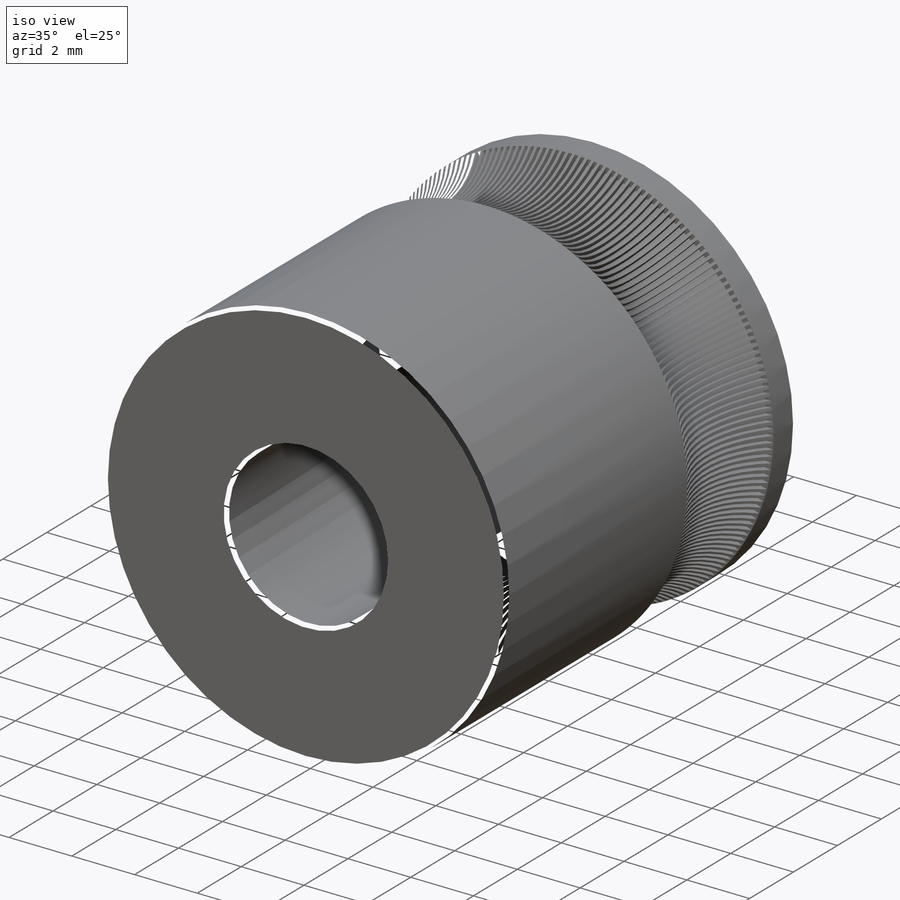
[diagram: iso view]
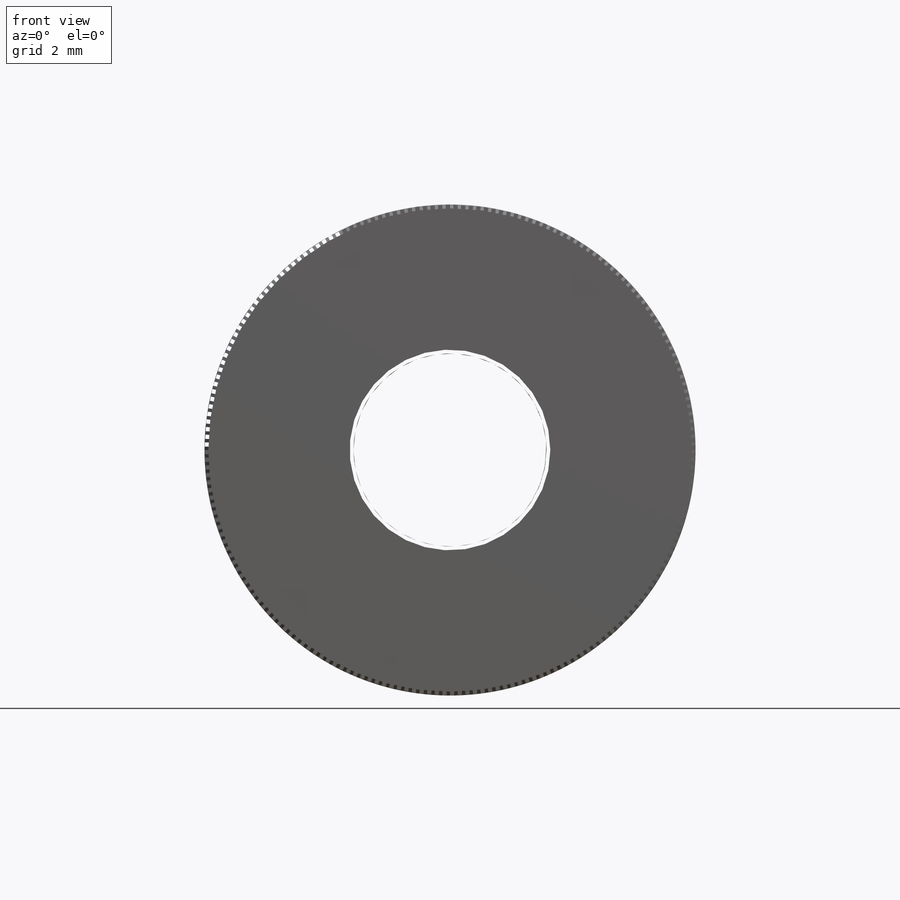
[diagram: front view]
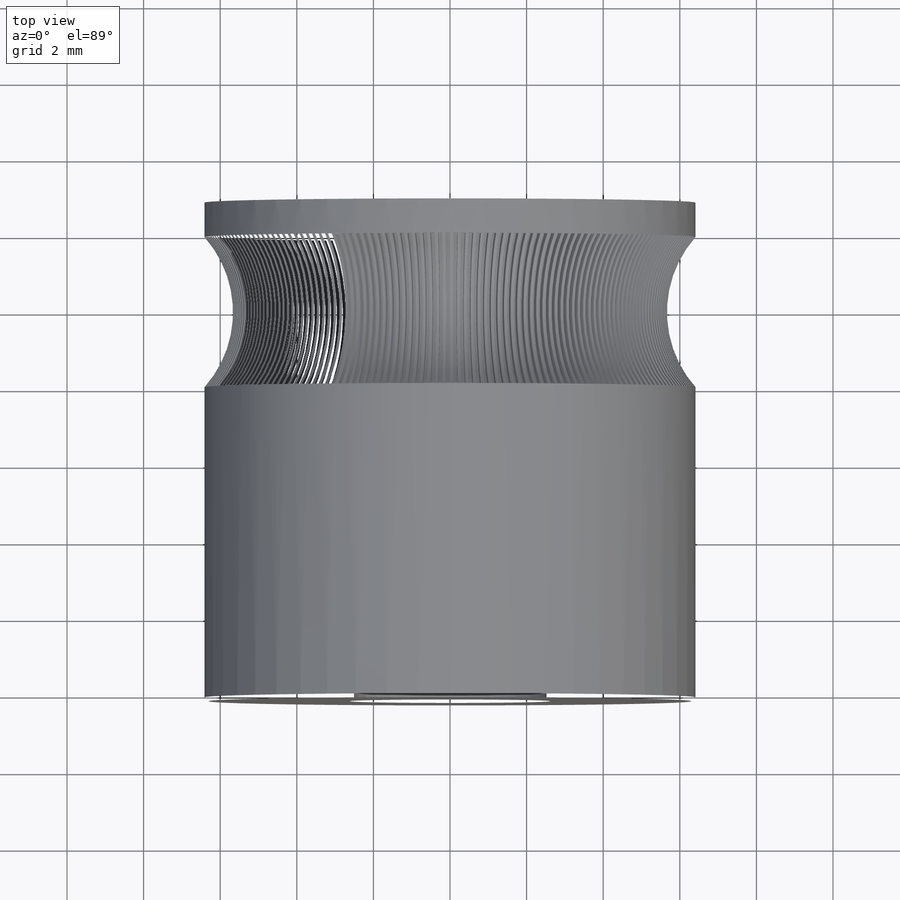
[diagram: top view]
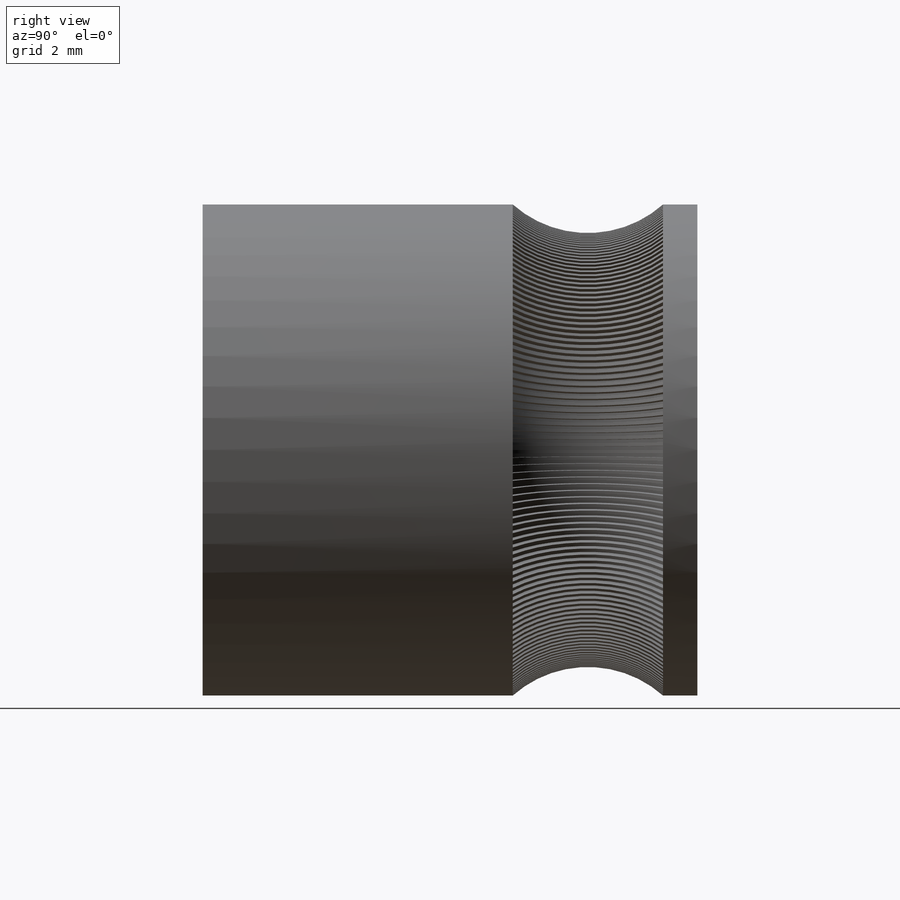
[diagram: right view]
SOLIDWORKS PART (.sldprt)
format: sldprt  version: not decoded by parser v0  size: 1,156,096 bytes
history: native  units: mm
features: sketch x2, material x1, revolve x1, cut_revolve x1, pattern_circular x1, chamfer x1 (+13 scaffold rows collapsed)
feature tree (20):
  scaffold x13  (default folders/planes/origin — collapsed)
  material  "Material <not specified>"
  sketch  "Sketch1"  dims[D1=~2.784866mm D2=2.52mm D3=6.41mm D4=~8.619386mm D5=4.92mm D6=8.2mm]
  revolve  "Revolve1"  Angle=360deg
  sketch  "Sketch2"  dims[D1=0.15mm]
  cut_revolve  "Cut-Revolve1"  Angle=1deg
  pattern_circular  "CirPattern1"  Count=200 Angle=360deg
  chamfer  "Chamfer1"  Distance=0.1mm Angle=45deg
decode coverage: 6 of 6 modeling features carry decoded parameters
note: ~ marks probable driven/reference dimensions
note: suppression state not decoded; provenance and decode notes live in map.json
